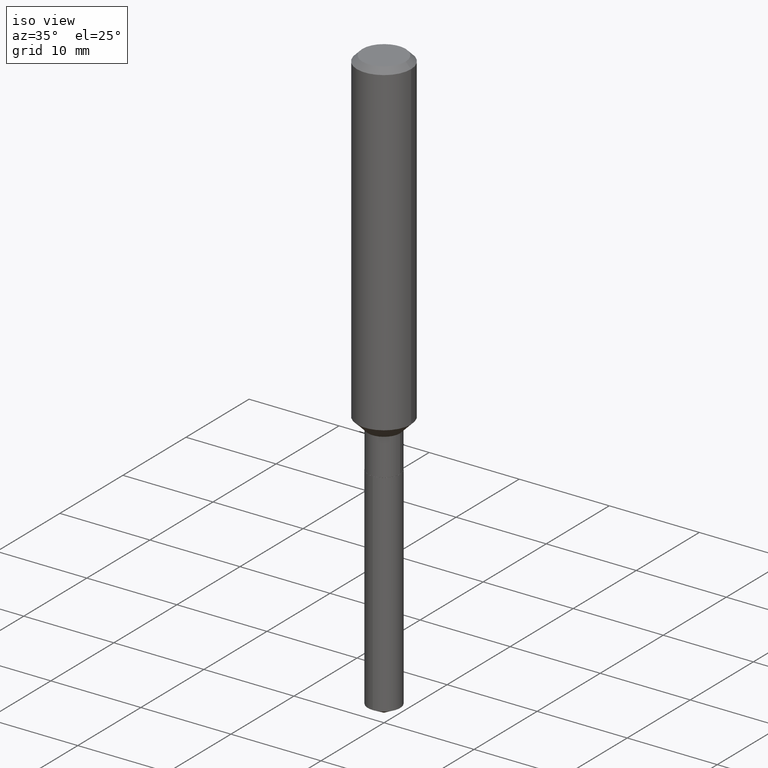
[diagram: clean part render]
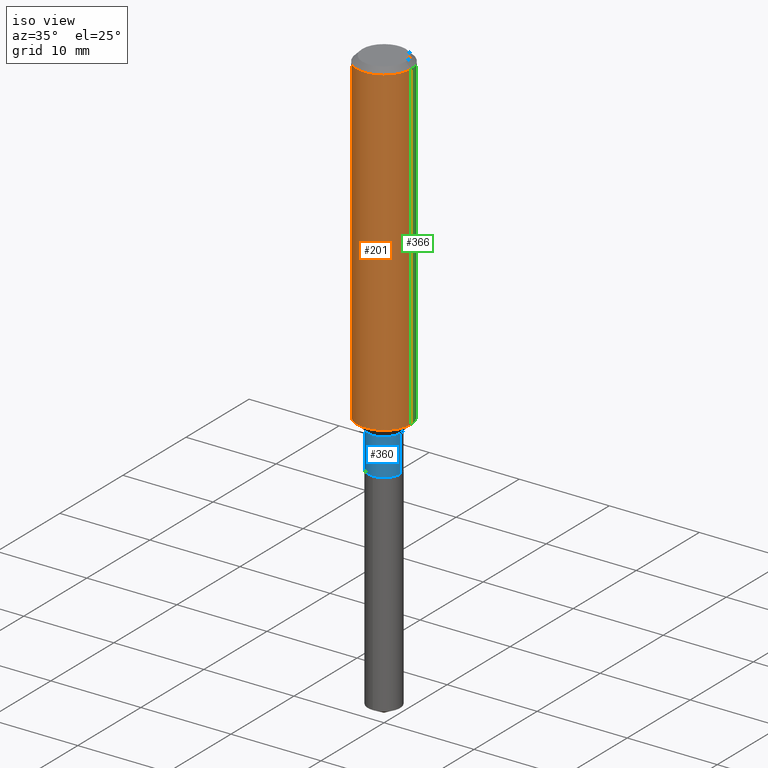
[diagram: same view with three faces highlighted in distinct colors, each labeled with its STEP entity id]
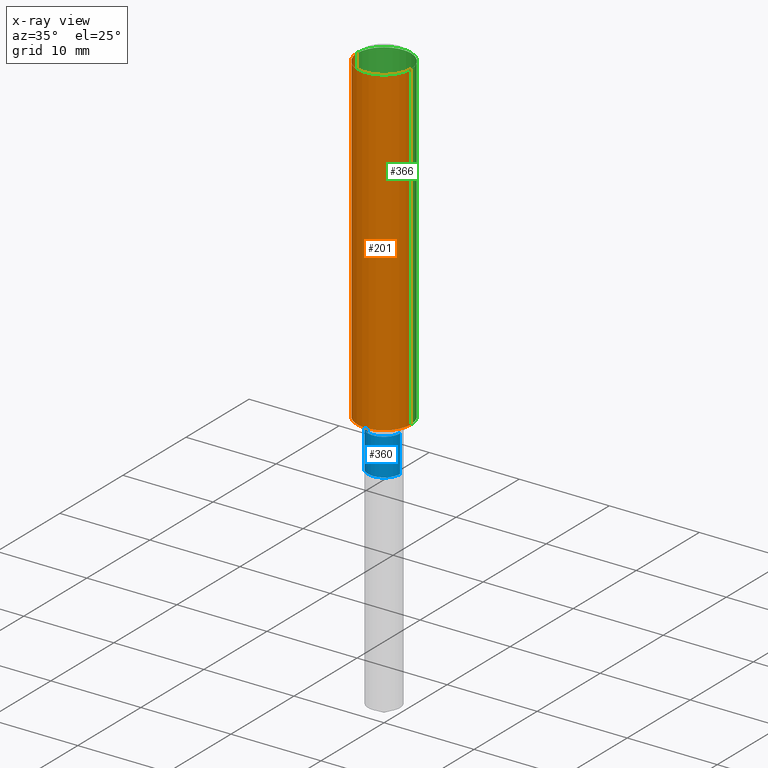
[diagram: x-ray of the same camera — body ghosted, the three highlighted faces saturated]
A machine part, iso view with three faces highlighted in distinct colors.
The next image is the same camera in x-ray (body ghosted, the three faces saturated) — at least one of them is partly hidden behind the body in this view.
Their STEP definitions:

[orange] entity #201 — the highlighted cylindrical surface (edge-blend (fillet) strip) has radius 2.9997 mm, axis along (-0, 0, 1).
#5 = DIRECTION ( 'NONE',  ( -2.445468806185136597E-29, 3.491481338843145583E-15, 1.000000000000000000 ) ) ;
#7 = EDGE_LOOP ( 'NONE', ( #121, #195, #273, #340 ) ) ;
#10 = CARTESIAN_POINT ( 'NONE',  ( 0.000000000000000000, 0.000000000000000000, 0.000000000000000000 ) ) ;
#18 = EDGE_CURVE ( 'NONE', #380, #229, #482, .T. ) ;
#19 = CYLINDRICAL_SURFACE ( 'NONE', #136, 0.1181000000000000799 ) ;
#23 = DIRECTION ( 'NONE',  ( 1.000000000000000000, -6.982962677686266711E-15, 0.000000000000000000 ) ) ;
#50 = CIRCLE ( 'NONE', #185, 0.1181000000000001632 ) ;
#55 = LINE ( 'NONE', #316, #214 ) ;
#98 = CIRCLE ( 'NONE', #374, 0.1180999999999999966 ) ;
#104 = EDGE_CURVE ( 'NONE', #461, #345, #55, .T. ) ;
#114 = CARTESIAN_POINT ( 'NONE',  ( -0.1180999999999999966, -1.693429933010585093E-15, -0.02362000000000014435 ) ) ;
#121 = ORIENTED_EDGE ( 'NONE', *, *, #18, .F. ) ;
#128 = DIRECTION ( 'NONE',  ( -2.445468806185136597E-29, 3.491481338843145583E-15, 1.000000000000000000 ) ) ;
#133 = CARTESIAN_POINT ( 'NONE',  ( -0.1181000000000000799, 8.391509709326788873E-16, -5.809262341591047988E-30 ) ) ;
#136 = AXIS2_PLACEMENT_3D ( 'NONE', #10, #5, #458 ) ;
#180 = CARTESIAN_POINT ( 'NONE',  ( 0.1181000000000001632, -5.807380910897803330E-15, -1.427100000000000257 ) ) ;
#185 = AXIS2_PLACEMENT_3D ( 'NONE', #415, #218, #405 ) ;
#195 = ORIENTED_EDGE ( 'NONE', *, *, #448, .T. ) ;
#201 = ADVANCED_FACE ( 'NONE', ( #344 ), #19, .T. ) ;
#214 = VECTOR ( 'NONE', #246, 39.37007874015748143 ) ;
#218 = DIRECTION ( 'NONE',  ( -2.445468806185136597E-29, 3.491481338843145583E-15, 1.000000000000000000 ) ) ;
#229 = VERTEX_POINT ( 'NONE', #114 ) ;
#240 = DIRECTION ( 'NONE',  ( -2.445468806185136877E-29, 3.491481338843145188E-15, 1.000000000000000000 ) ) ;
#244 = CARTESIAN_POINT ( 'NONE',  ( 0.1180999999999999966, -9.071566814582237199E-16, -0.02362000000000014435 ) ) ;
#246 = DIRECTION ( 'NONE',  ( -2.445468806185136877E-29, 3.491481338843145188E-15, 1.000000000000000000 ) ) ;
#273 = ORIENTED_EDGE ( 'NONE', *, *, #104, .T. ) ;
#285 = CARTESIAN_POINT ( 'NONE',  ( -0.1181000000000001632, -4.143542047730375293E-15, -1.427100000000000257 ) ) ;
#316 = CARTESIAN_POINT ( 'NONE',  ( 0.1181000000000000799, -8.246878922347486570E-16, 5.758764772215004644E-30 ) ) ;
#340 = ORIENTED_EDGE ( 'NONE', *, *, #481, .F. ) ;
#344 = FACE_OUTER_BOUND ( 'NONE', #7, .T. ) ;
#345 = VERTEX_POINT ( 'NONE', #244 ) ;
#374 = AXIS2_PLACEMENT_3D ( 'NONE', #487, #128, #23 ) ;
#380 = VERTEX_POINT ( 'NONE', #285 ) ;
#405 = DIRECTION ( 'NONE',  ( 1.000000000000000000, -6.982962677686263555E-15, 0.000000000000000000 ) ) ;
#415 = CARTESIAN_POINT ( 'NONE',  ( 3.489928533306808856E-29, -4.982693018663053490E-15, -1.427100000000000257 ) ) ;
#448 = EDGE_CURVE ( 'NONE', #380, #461, #50, .T. ) ;
#458 = DIRECTION ( 'NONE',  ( 1.000000000000000000, -6.982962677686266711E-15, 4.876176775795936353E-29 ) ) ;
#461 = VERTEX_POINT ( 'NONE', #180 ) ;
#481 = EDGE_CURVE ( 'NONE', #229, #345, #98, .T. ) ;
#482 = LINE ( 'NONE', #133, #484 ) ;
#484 = VECTOR ( 'NONE', #240, 39.37007874015748143 ) ;
#487 = CARTESIAN_POINT ( 'NONE',  ( 5.776197320209328408E-31, -8.246878922347560526E-17, -0.02362000000000014435 ) ) ;

[blue] entity #360 — the highlighted cylindrical surface (edge-blend (fillet) strip) has radius 1.7856 mm, axis along (-0, 0, 1).
#24 = CARTESIAN_POINT ( 'NONE',  ( -0.07029999999999998750, -4.931487679331163902E-15, -1.474900000000000100 ) ) ;
#33 = CIRCLE ( 'NONE', #113, 0.07030000000000000138 ) ;
#39 = AXIS2_PLACEMENT_3D ( 'NONE', #102, #64, #436 ) ;
#49 = CARTESIAN_POINT ( 'NONE',  ( -0.07029999999999998750, 4.995115432393503418E-16, -3.458011368449198169E-30 ) ) ;
#61 = VECTOR ( 'NONE', #408, 39.37007874015748143 ) ;
#64 = DIRECTION ( 'NONE',  ( -2.445468806185136597E-29, 3.491481338843145583E-15, 1.000000000000000000 ) ) ;
#65 = DIRECTION ( 'NONE',  ( 1.000000000000000000, -6.982962677686265133E-15, 0.000000000000000000 ) ) ;
#88 = VERTEX_POINT ( 'NONE', #24 ) ;
#97 = FACE_OUTER_BOUND ( 'NONE', #426, .T. ) ;
#102 = CARTESIAN_POINT ( 'NONE',  ( 3.606821942242458368E-29, -5.149585826659756331E-15, -1.474900000000000100 ) ) ;
#113 = AXIS2_PLACEMENT_3D ( 'NONE', #406, #212, #65 ) ;
#118 = VERTEX_POINT ( 'NONE', #131 ) ;
#122 = EDGE_CURVE ( 'NONE', #155, #199, #33, .T. ) ;
#123 = CARTESIAN_POINT ( 'NONE',  ( -0.07030000000000000138, -4.931487679331163902E-15, -1.636100000000000110 ) ) ;
#126 = CYLINDRICAL_SURFACE ( 'NONE', #455, 0.07029999999999998750 ) ;
#131 = CARTESIAN_POINT ( 'NONE',  ( 0.07029999999999998750, -5.640488102901100489E-15, -1.474900000000000100 ) ) ;
#138 = LINE ( 'NONE', #248, #61 ) ;
#155 = VERTEX_POINT ( 'NONE', #123 ) ;
#158 = EDGE_CURVE ( 'NONE', #155, #88, #460, .T. ) ;
#198 = ORIENTED_EDGE ( 'NONE', *, *, #454, .F. ) ;
#199 = VERTEX_POINT ( 'NONE', #425 ) ;
#206 = DIRECTION ( 'NONE',  ( -2.445468806185136597E-29, 3.491481338843145583E-15, 1.000000000000000000 ) ) ;
#211 = CARTESIAN_POINT ( 'NONE',  ( 0.000000000000000000, 0.000000000000000000, 0.000000000000000000 ) ) ;
#212 = DIRECTION ( 'NONE',  ( -2.445468806185136597E-29, 3.491481338843145583E-15, 1.000000000000000000 ) ) ;
#226 = VECTOR ( 'NONE', #346, 39.37007874015748143 ) ;
#248 = CARTESIAN_POINT ( 'NONE',  ( 0.07029999999999998750, -4.909022762413444543E-16, 3.427952273384542436E-30 ) ) ;
#342 = EDGE_CURVE ( 'NONE', #199, #118, #138, .T. ) ;
#346 = DIRECTION ( 'NONE',  ( -2.445468806185136877E-29, 3.491481338843145188E-15, 1.000000000000000000 ) ) ;
#360 = ADVANCED_FACE ( 'NONE', ( #97 ), #126, .T. ) ;
#365 = DIRECTION ( 'NONE',  ( 1.000000000000000000, -6.982962677686266711E-15, 4.876176775795935793E-29 ) ) ;
#385 = CIRCLE ( 'NONE', #39, 0.07029999999999998750 ) ;
#386 = ORIENTED_EDGE ( 'NONE', *, *, #342, .T. ) ;
#392 = ORIENTED_EDGE ( 'NONE', *, *, #158, .F. ) ;
#406 = CARTESIAN_POINT ( 'NONE',  ( 4.001031513799502342E-29, -5.712412618481271170E-15, -1.636100000000000110 ) ) ;
#408 = DIRECTION ( 'NONE',  ( -2.445468806185136877E-29, 3.491481338843145188E-15, 1.000000000000000000 ) ) ;
#425 = CARTESIAN_POINT ( 'NONE',  ( 0.07030000000000000138, -6.203314894722615328E-15, -1.636100000000000110 ) ) ;
#426 = EDGE_LOOP ( 'NONE', ( #392, #445, #386, #198 ) ) ;
#436 = DIRECTION ( 'NONE',  ( 1.000000000000000000, -6.982962677686266711E-15, 0.000000000000000000 ) ) ;
#445 = ORIENTED_EDGE ( 'NONE', *, *, #122, .T. ) ;
#454 = EDGE_CURVE ( 'NONE', #88, #118, #385, .T. ) ;
#455 = AXIS2_PLACEMENT_3D ( 'NONE', #211, #206, #365 ) ;
#460 = LINE ( 'NONE', #49, #226 ) ;

[green] entity #366 — the highlighted cylindrical surface (edge-blend (fillet) strip) has radius 2.9997 mm, axis along (-0, 0, 1).
#9 = ORIENTED_EDGE ( 'NONE', *, *, #393, .T. ) ;
#18 = EDGE_CURVE ( 'NONE', #380, #229, #482, .T. ) ;
#32 = FACE_OUTER_BOUND ( 'NONE', #303, .T. ) ;
#55 = LINE ( 'NONE', #316, #214 ) ;
#68 = DIRECTION ( 'NONE',  ( -2.445468806185136597E-29, 3.491481338843145583E-15, 1.000000000000000000 ) ) ;
#70 = AXIS2_PLACEMENT_3D ( 'NONE', #441, #110, #76 ) ;
#76 = DIRECTION ( 'NONE',  ( 1.000000000000000000, -6.982962677686263555E-15, 0.000000000000000000 ) ) ;
#83 = ORIENTED_EDGE ( 'NONE', *, *, #249, .F. ) ;
#104 = EDGE_CURVE ( 'NONE', #461, #345, #55, .T. ) ;
#110 = DIRECTION ( 'NONE',  ( -2.445468806185136597E-29, 3.491481338843145583E-15, 1.000000000000000000 ) ) ;
#114 = CARTESIAN_POINT ( 'NONE',  ( -0.1180999999999999966, -1.693429933010585093E-15, -0.02362000000000014435 ) ) ;
#133 = CARTESIAN_POINT ( 'NONE',  ( -0.1181000000000000799, 8.391509709326788873E-16, -5.809262341591047988E-30 ) ) ;
#149 = AXIS2_PLACEMENT_3D ( 'NONE', #308, #468, #318 ) ;
#178 = CYLINDRICAL_SURFACE ( 'NONE', #215, 0.1181000000000000799 ) ;
#180 = CARTESIAN_POINT ( 'NONE',  ( 0.1181000000000001632, -5.807380910897803330E-15, -1.427100000000000257 ) ) ;
#193 = ORIENTED_EDGE ( 'NONE', *, *, #104, .F. ) ;
#213 = DIRECTION ( 'NONE',  ( 1.000000000000000000, -6.982962677686266711E-15, 4.876176775795936353E-29 ) ) ;
#214 = VECTOR ( 'NONE', #246, 39.37007874015748143 ) ;
#215 = AXIS2_PLACEMENT_3D ( 'NONE', #486, #68, #213 ) ;
#229 = VERTEX_POINT ( 'NONE', #114 ) ;
#238 = ORIENTED_EDGE ( 'NONE', *, *, #18, .T. ) ;
#240 = DIRECTION ( 'NONE',  ( -2.445468806185136877E-29, 3.491481338843145188E-15, 1.000000000000000000 ) ) ;
#244 = CARTESIAN_POINT ( 'NONE',  ( 0.1180999999999999966, -9.071566814582237199E-16, -0.02362000000000014435 ) ) ;
#246 = DIRECTION ( 'NONE',  ( -2.445468806185136877E-29, 3.491481338843145188E-15, 1.000000000000000000 ) ) ;
#249 = EDGE_CURVE ( 'NONE', #345, #229, #313, .T. ) ;
#282 = CIRCLE ( 'NONE', #70, 0.1181000000000001632 ) ;
#285 = CARTESIAN_POINT ( 'NONE',  ( -0.1181000000000001632, -4.143542047730375293E-15, -1.427100000000000257 ) ) ;
#303 = EDGE_LOOP ( 'NONE', ( #9, #238, #83, #193 ) ) ;
#308 = CARTESIAN_POINT ( 'NONE',  ( 5.776197320209328408E-31, -8.246878922347560526E-17, -0.02362000000000014435 ) ) ;
#313 = CIRCLE ( 'NONE', #149, 0.1180999999999999966 ) ;
#316 = CARTESIAN_POINT ( 'NONE',  ( 0.1181000000000000799, -8.246878922347486570E-16, 5.758764772215004644E-30 ) ) ;
#318 = DIRECTION ( 'NONE',  ( 1.000000000000000000, -6.982962677686266711E-15, 0.000000000000000000 ) ) ;
#345 = VERTEX_POINT ( 'NONE', #244 ) ;
#366 = ADVANCED_FACE ( 'NONE', ( #32 ), #178, .T. ) ;
#380 = VERTEX_POINT ( 'NONE', #285 ) ;
#393 = EDGE_CURVE ( 'NONE', #461, #380, #282, .T. ) ;
#441 = CARTESIAN_POINT ( 'NONE',  ( 3.489928533306808856E-29, -4.982693018663053490E-15, -1.427100000000000257 ) ) ;
#461 = VERTEX_POINT ( 'NONE', #180 ) ;
#468 = DIRECTION ( 'NONE',  ( -2.445468806185136597E-29, 3.491481338843145583E-15, 1.000000000000000000 ) ) ;
#482 = LINE ( 'NONE', #133, #484 ) ;
#484 = VECTOR ( 'NONE', #240, 39.37007874015748143 ) ;
#486 = CARTESIAN_POINT ( 'NONE',  ( 0.000000000000000000, 0.000000000000000000, 0.000000000000000000 ) ) ;